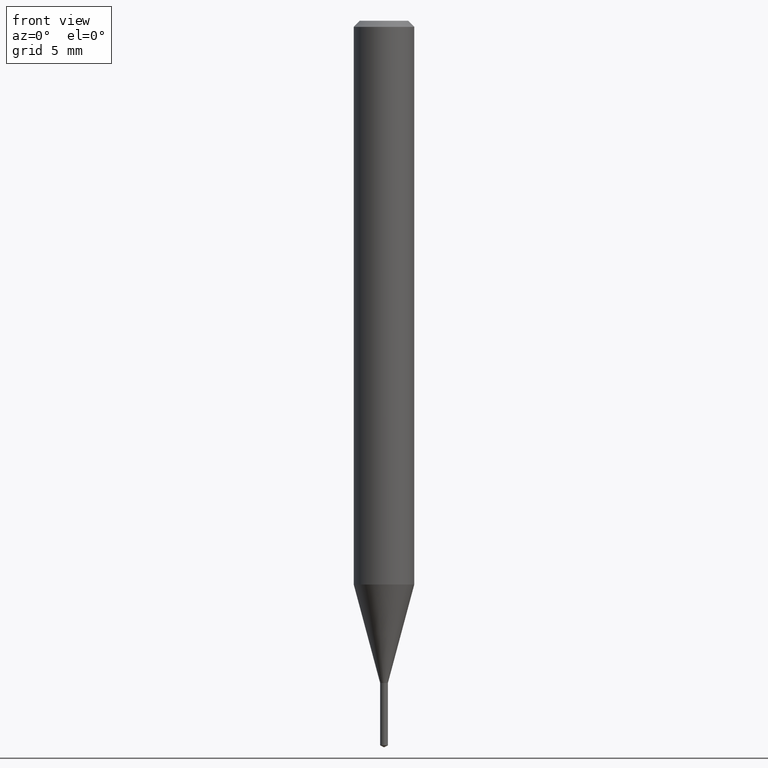
[diagram: clean part render]
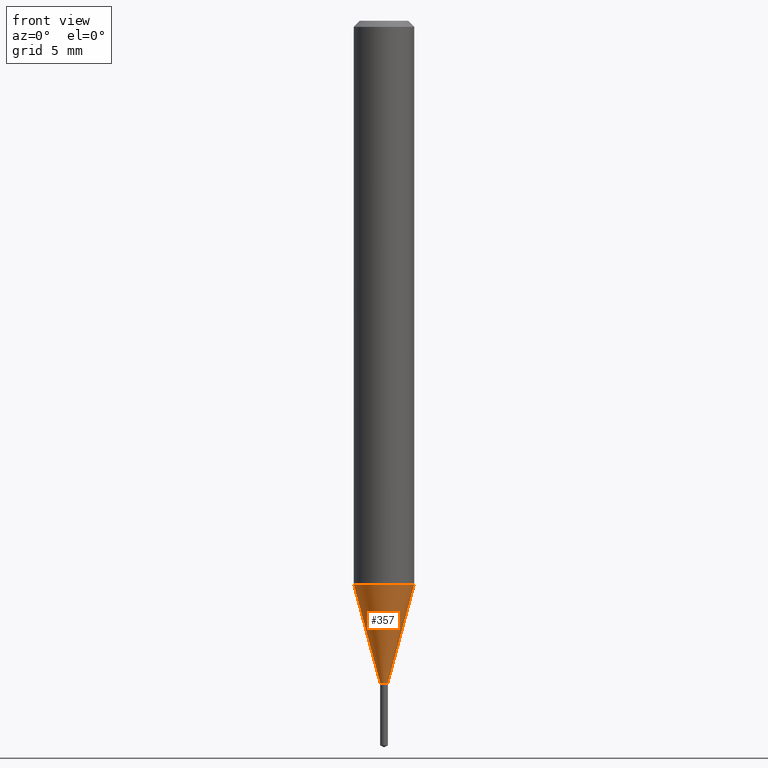
[diagram: same view with one face highlighted and labeled with its STEP entity id]
A machine part, front view. The second image highlights one B-rep face of the part: STEP entity #357.
In plain terms, the highlighted conical surface has half-angle 15 deg.
Its self-contained STEP definition (entity closure, byte-faithful):
#4 = EDGE_CURVE ( 'NONE', #106, #158, #163, .T. ) ;
#7 = FACE_OUTER_BOUND ( 'NONE', #194, .T. ) ;
#13 = VECTOR ( 'NONE', #23, 39.37007874015748854 ) ;
#18 = ORIENTED_EDGE ( 'NONE', *, *, #27, .T. ) ;
#23 = DIRECTION ( 'NONE',  ( 0.2588190451025279559, 1.565188264969569508E-15, 0.9659258262890664248 ) ) ;
#27 = EDGE_CURVE ( 'NONE', #158, #310, #257, .T. ) ;
#36 = DIRECTION ( 'NONE',  ( -2.445468806185136597E-29, 3.491481338843145583E-15, 1.000000000000000000 ) ) ;
#37 = DIRECTION ( 'NONE',  ( -2.445468806185136597E-29, 3.491481338843145583E-15, 1.000000000000000000 ) ) ;
#48 = DIRECTION ( 'NONE',  ( -2.445468806185136597E-29, 3.491481338843145583E-15, 1.000000000000000000 ) ) ;
#64 = AXIS2_PLACEMENT_3D ( 'NONE', #219, #37, #447 ) ;
#106 = VERTEX_POINT ( 'NONE', #218 ) ;
#113 = AXIS2_PLACEMENT_3D ( 'NONE', #342, #36, #231 ) ;
#124 = ORIENTED_EDGE ( 'NONE', *, *, #4, .T. ) ;
#158 = VERTEX_POINT ( 'NONE', #251 ) ;
#163 = CIRCLE ( 'NONE', #170, 0.008000000000000000167 ) ;
#167 = ORIENTED_EDGE ( 'NONE', *, *, #282, .F. ) ;
#170 = AXIS2_PLACEMENT_3D ( 'NONE', #239, #48, #201 ) ;
#188 = VECTOR ( 'NONE', #441, 39.37007874015748854 ) ;
#191 = ORIENTED_EDGE ( 'NONE', *, *, #322, .F. ) ;
#194 = EDGE_LOOP ( 'NONE', ( #191, #124, #18, #167 ) ) ;
#201 = DIRECTION ( 'NONE',  ( 1.000000000000000000, -6.982962677686211490E-15, 0.000000000000000000 ) ) ;
#218 = CARTESIAN_POINT ( 'NONE',  ( -0.008000000000000000167, -4.433027008824534851E-15, -1.367399999999999949 ) ) ;
#219 = CARTESIAN_POINT ( 'NONE',  ( 2.846533591678647944E-29, -4.064095559345990057E-15, -1.164003230987501691 ) ) ;
#231 = DIRECTION ( 'NONE',  ( 1.000000000000000000, -6.982962677686211490E-15, 0.000000000000000000 ) ) ;
#239 = CARTESIAN_POINT ( 'NONE',  ( 3.343934045577555938E-29, -4.774251582734117286E-15, -1.367399999999999949 ) ) ;
#251 = CARTESIAN_POINT ( 'NONE',  ( 0.008000000000000000167, -4.830115284155606978E-15, -1.367399999999999949 ) ) ;
#257 = LINE ( 'NONE', #432, #13 ) ;
#282 = EDGE_CURVE ( 'NONE', #408, #310, #399, .T. ) ;
#292 = LINE ( 'NONE', #407, #188 ) ;
#310 = VERTEX_POINT ( 'NONE', #367 ) ;
#320 = CONICAL_SURFACE ( 'NONE', #113, 0.008000000000000000167, 0.2617993877991569018 ) ;
#322 = EDGE_CURVE ( 'NONE', #106, #408, #292, .T. ) ;
#342 = CARTESIAN_POINT ( 'NONE',  ( 3.343934045577555938E-29, -4.774251582734117286E-15, -1.367399999999999949 ) ) ;
#357 = ADVANCED_FACE ( 'NONE', ( #7 ), #320, .T. ) ;
#367 = CARTESIAN_POINT ( 'NONE',  ( 0.06250000000000013878, -4.500530726701381726E-15, -1.164003230987501691 ) ) ;
#399 = CIRCLE ( 'NONE', #64, 0.06250000000000013878 ) ;
#407 = CARTESIAN_POINT ( 'NONE',  ( -0.008000000000000000167, -4.717408163873309221E-15, -1.367399999999999949 ) ) ;
#408 = VERTEX_POINT ( 'NONE', #420 ) ;
#420 = CARTESIAN_POINT ( 'NONE',  ( -0.06250000000000013878, -3.620006349495926652E-15, -1.164003230987501691 ) ) ;
#432 = CARTESIAN_POINT ( 'NONE',  ( 0.008000000000000000167, -4.830115284155606978E-15, -1.367399999999999949 ) ) ;
#441 = DIRECTION ( 'NONE',  ( -0.2588190451025279559, 5.211531920934590485E-15, 0.9659258262890664248 ) ) ;
#447 = DIRECTION ( 'NONE',  ( 1.000000000000000000, -6.982962677686270655E-15, 0.000000000000000000 ) ) ;